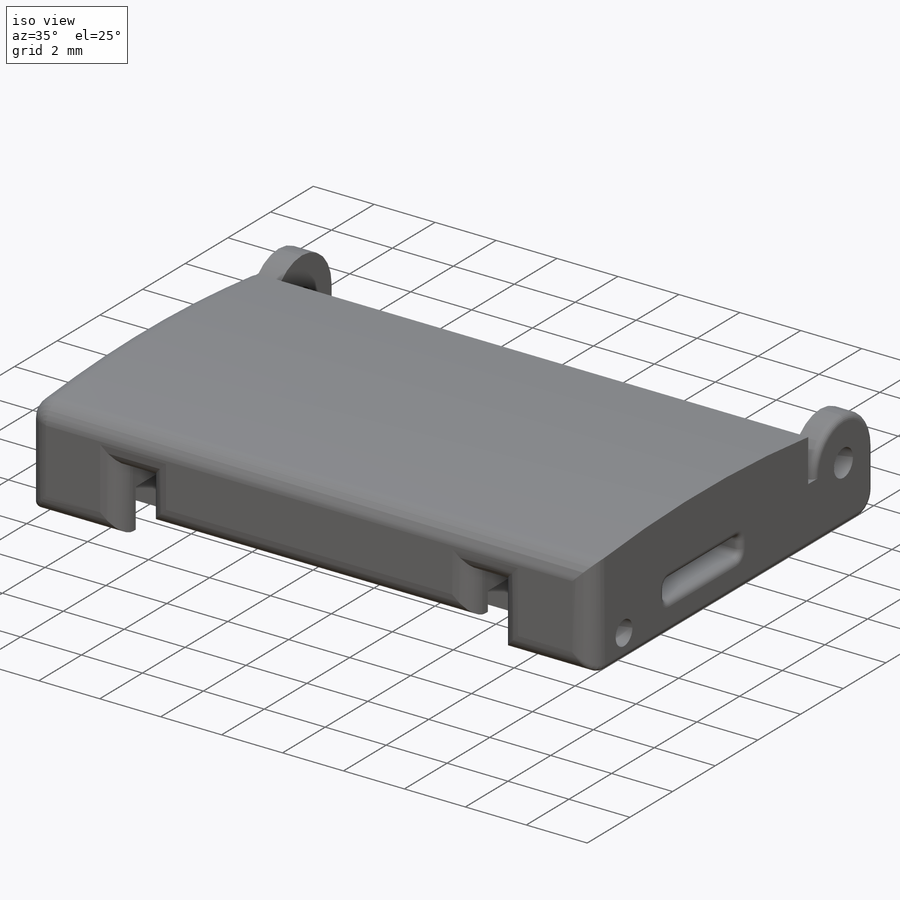
[diagram: iso view]
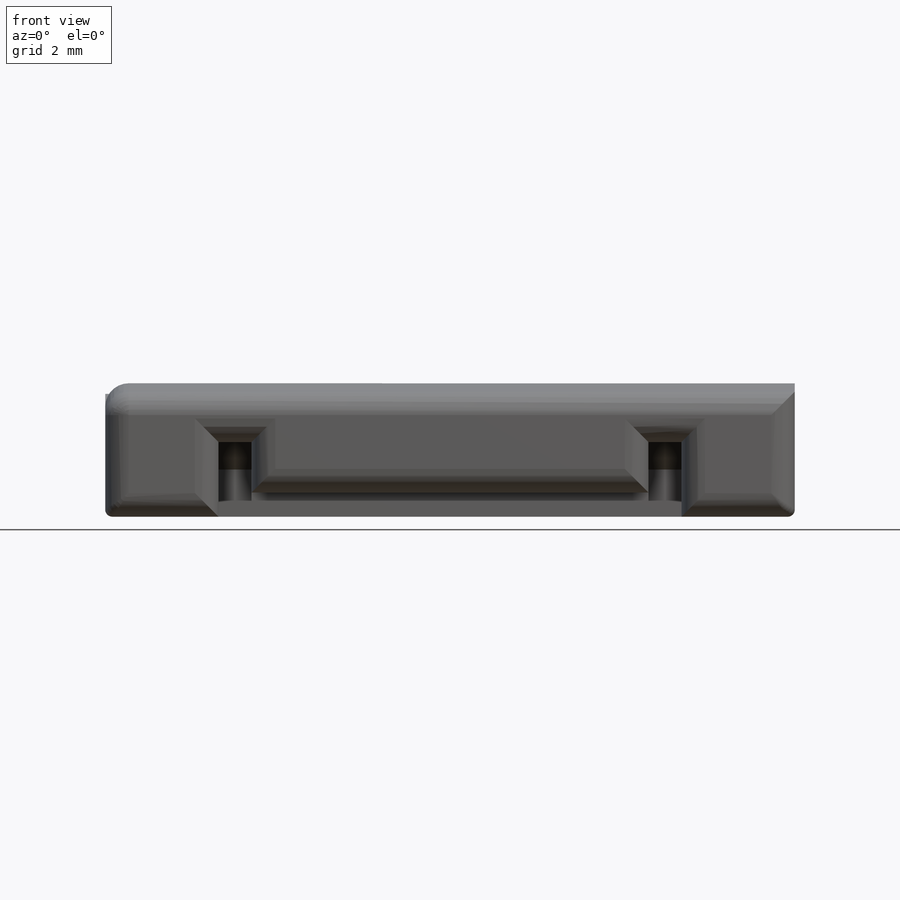
[diagram: front view]
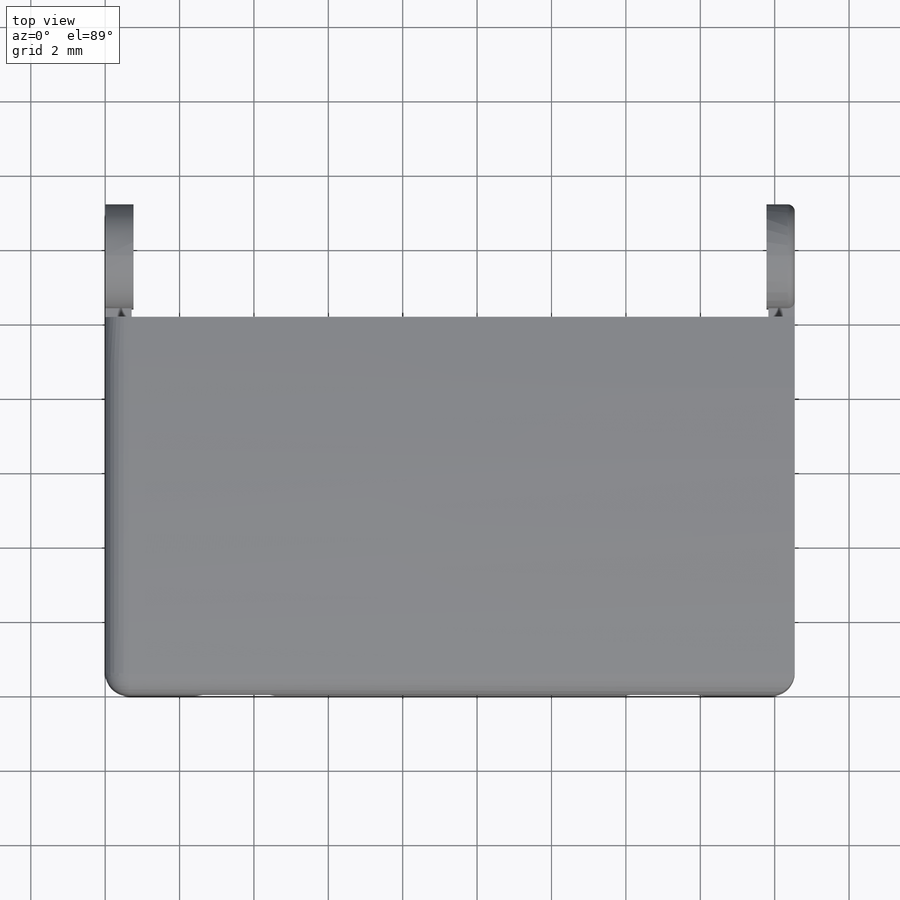
[diagram: top view]
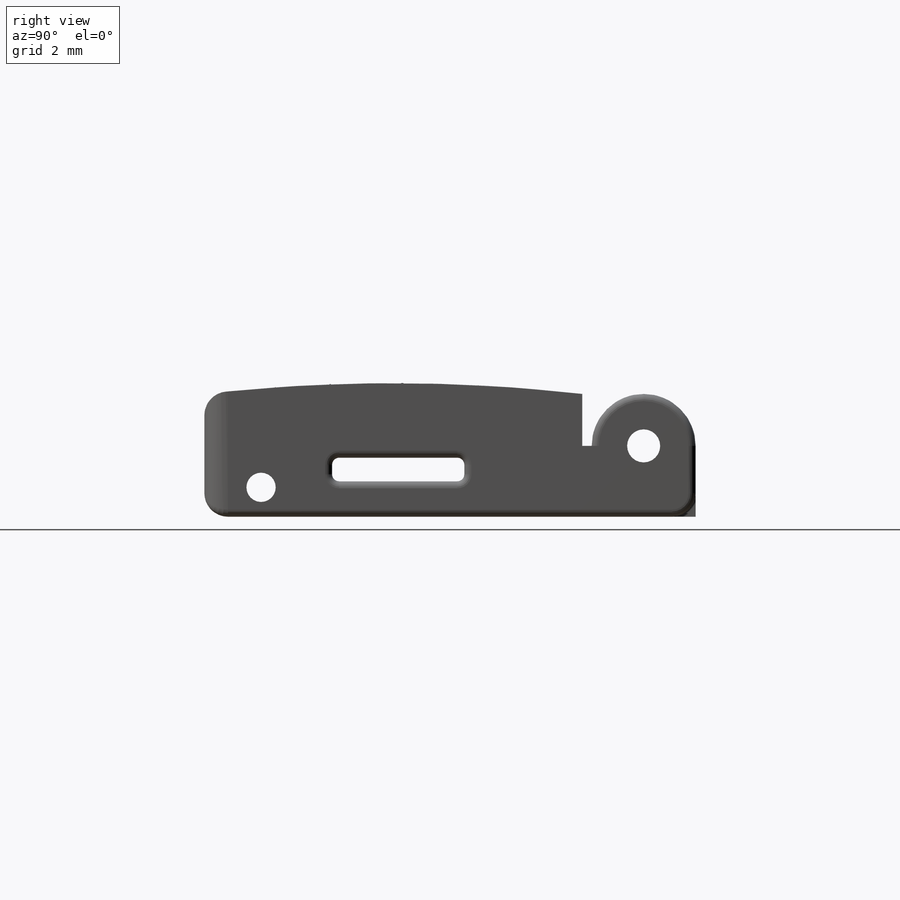
[diagram: right view]
SOLIDWORKS PART (.sldprt)
format: sldprt  version: not decoded by parser v0  size: 575,488 bytes
history: native  units: mm
features: sketch x11, cut_extrude x7, extrude x4, fillet x4, material x1, chamfer x1, plane x1, mirror x1 (+11 scaffold rows collapsed)
feature tree (41):
  scaffold x11  (default folders/planes/origin — collapsed)
  material  "Material <not specified>"
  sketch  "Sketch1"  dims[D1=18.542mm D2=10.16mm]
  extrude  "Extrude1"  Depth=3.302mm
  sketch  "Sketch2"  dims[D1=~44.611528mm]
  extrude  "Extrude2"  [1 undecoded]
  sketch  "Sketch3"  dims[D1=10.668mm D2=0.889mm D3=0.889mm]
  cut_extrude  "Extrude3"  Depth=2.286mm
  sketch  "Sketch4"  dims[D1=0.762mm D2=0.762mm D3=0.762mm D4=~1.679447mm D5=17.018mm]
  cut_extrude  "Extrude4"  Depth=1.27mm
  sketch  "Sketch5"  dims[D1=0.7874mm]
  cut_extrude  "Extrude5"  Depth=40.386mm
  chamfer  "Chamfer1"  Distance=0.762mm Angle=45deg
  sketch  "Sketch6"  dims[D1=2.794mm D2=4.064mm]
  cut_extrude  "Extrude6"  Depth=2.54mm
  sketch  "Sketch7"  dims[D1=0.635mm D2=3.556mm]
  cut_extrude  "Extrude7"  Depth=22.86mm
  sketch  "Sketch8"  dims[D1=0.254mm D2=0.254mm]
  cut_extrude  "Extrude8"  [1 undecoded]
  fillet  "Fillet1"  Radius=0.1905mm
  sketch  "Sketch9"  dims[D1=0.7112mm D2=1.905mm]
  extrude  "Extrude9"  Depth=0.254mm
  sketch  "Sketch10"  dims[D1=3.302mm]
  extrude  "Extrude10"  Depth=2.794mm
  fillet  "Fillet2"  Radius=1.397mm
  sketch  "Sketch11"  dims[D1=0.889mm]
  cut_extrude  "Extrude11"  [1 undecoded]
  plane  "Plane1"
  mirror  "Mirror1"
  fillet  "Fillet3"  Radius=0.635mm
  fillet  "Fillet4"  Radius=0.1905mm
decode coverage: 24 of 28 modeling features carry decoded parameters
note: ~ marks probable driven/reference dimensions
note: 3 parameter values undecoded
summary: no parameter record found for 3 features
note: suppression state not decoded; provenance and decode notes live in map.json
